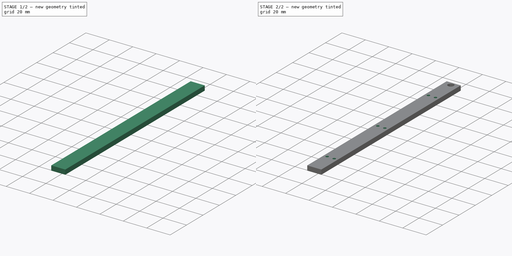
[diagram: build sequence overview — one tinted view per stage of 2, left to right]
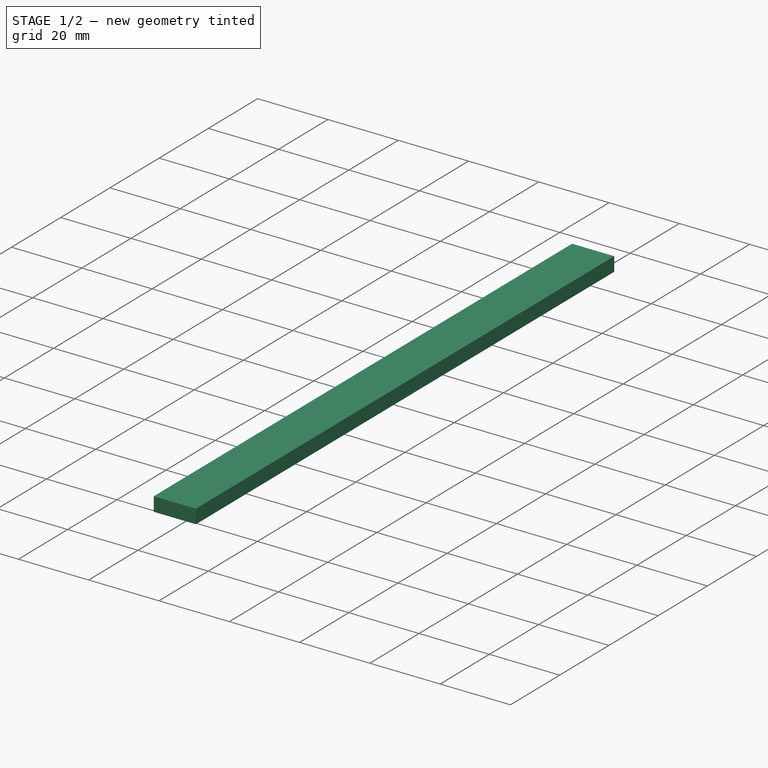
[diagram: stage 1 of 2 — iso view after this stage's code; geometry added in this stage tinted green]
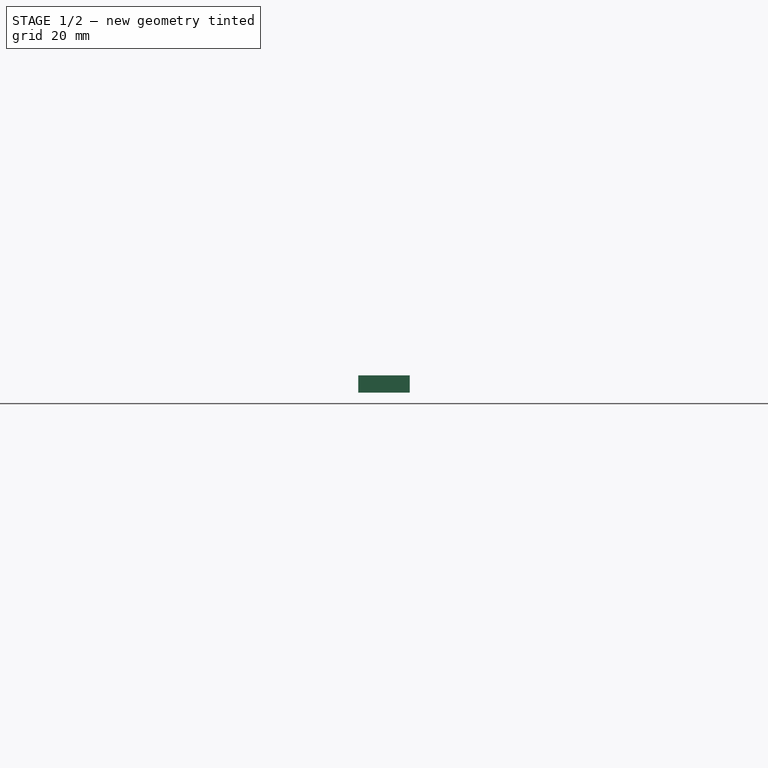
[diagram: stage 1 of 2 — front view after this stage's code; geometry added in this stage tinted green]
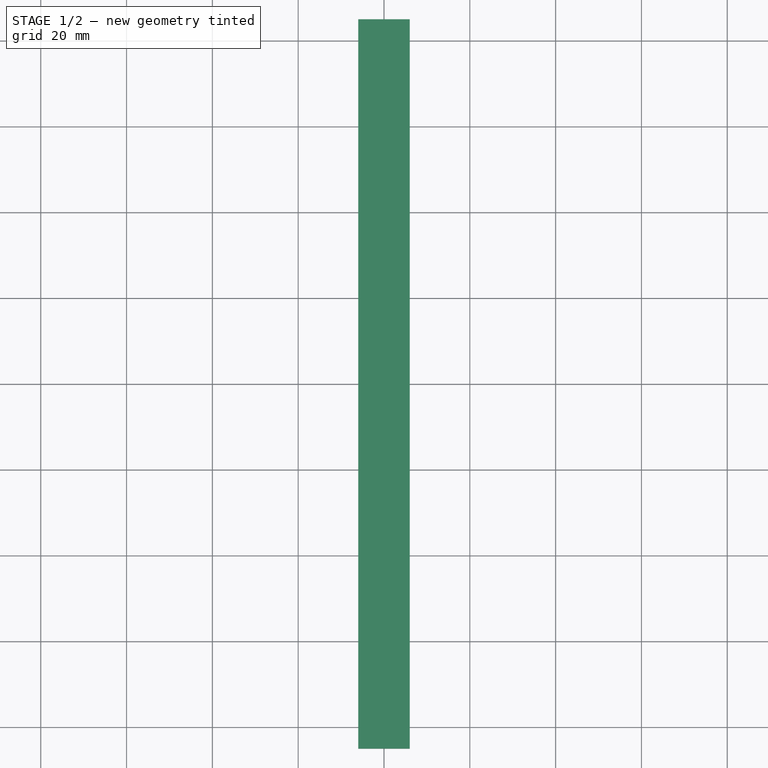
[diagram: stage 1 of 2 — top view after this stage's code; geometry added in this stage tinted green]
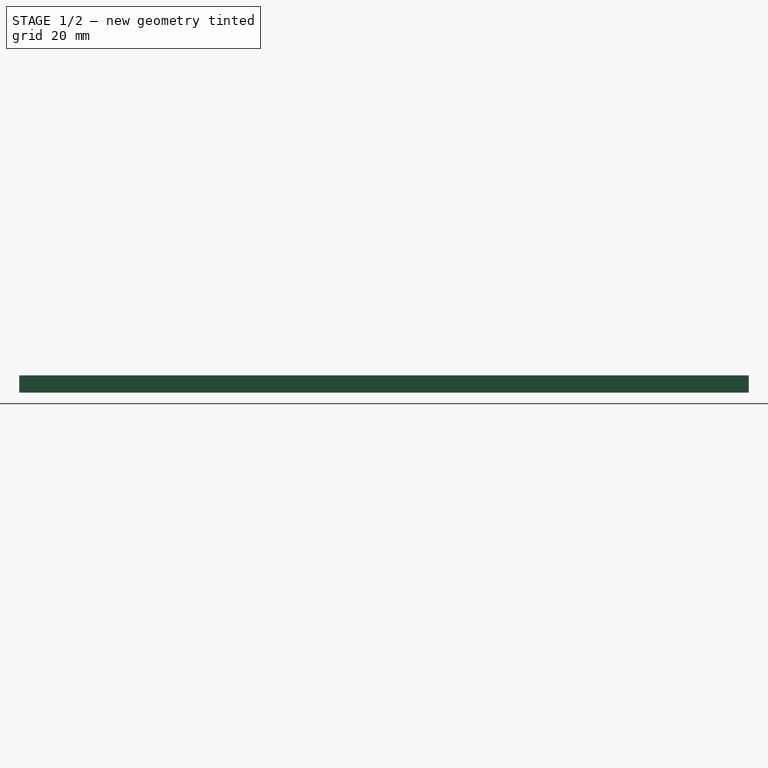
[diagram: stage 1 of 2 — right view after this stage's code; geometry added in this stage tinted green]
FCSTD DOCUMENT  (FreeCAD 1.0R39109 (Git))
Label: top front support
License: All rights reserved
LicenseURL: https://en.wikipedia.org/wiki/All_rights_reserved
objects: Sketcher::SketchObject×4, PartDesign::Pad×2, PartDesign::Pocket×1, PartDesign::Hole×1, PartDesign::Body×1
note: 21 computed .brp shape members not serialized (recipe doc carries the construction recipe); baked Part::Feature solids carry a one-line shape summary decoded from their .brp
EXTERNAL_REF file=case.FCStd obj=Spreadsheet

FEATURE [Sketcher::SketchObject] Sketch
  ArcFitTolerance = 1e-06
  AttachmentSupport = -> [XY_Plane]
  FullyConstrained = true
  MakeInternals = false
  MapMode = 5
  expr: Constraints[19] = case#Spreadsheet.magnet_diameter
  sketch-geometry (9):
    g0: LineSegment StartX=6 StartY=85 StartZ=0 EndX=-6 EndY=85 EndZ=0
    g1: LineSegment StartX=-6 StartY=85 StartZ=0 EndX=-6 EndY=-85 EndZ=0
    g2: LineSegment StartX=-6 StartY=-85 StartZ=0 EndX=6 EndY=-85 EndZ=0
    g3: LineSegment StartX=6 StartY=-85 StartZ=0 EndX=6 EndY=85 EndZ=0
    g4: LineSegment StartX=3.025 StartY=84.5 StartZ=0 EndX=-3.025 EndY=84.5 EndZ=0
    g5: LineSegment StartX=-3.025 StartY=84.5 StartZ=0 EndX=-3.025 EndY=78.45 EndZ=0
    g6: LineSegment StartX=-3.025 StartY=78.45 StartZ=0 EndX=3.025 EndY=78.45 EndZ=0
    g7: LineSegment StartX=3.025 StartY=78.45 StartZ=0 EndX=3.025 EndY=84.5 EndZ=0
    g8: GeomPoint [constr] X=0 Y=84.5 Z=0
  constraints (24):
    c: Coincident(g0,g1)
    c: Coincident(g1,g2)
    c: Coincident(g2,g3)
    c: Coincident(g3,g0)
    c: Horizontal(g0)
    c: Horizontal(g2)
    c: Vertical(g1)
    c: Vertical(g3)
    c: Symmetric(g0,g1,g-1)
    c: DistanceX(g0,g0) = 12
    c: DistanceY(g1,g1) = 170
    c: Coincident(g4,g5)
    c: Coincident(g5,g6)
    c: Coincident(g6,g7)
    c: Coincident(g7,g4)
    c: Horizontal(g4)
    c: Horizontal(g6)
    c: Vertical(g5)
    c: Vertical(g7)
    c: DistanceX(g4,g4) = 6.05
    c: Equal(g4,g7)
    c: Symmetric(g4,g4,g8)
    c: PointOnObject(g8,g-2)
    c: Distance(g4,g0) = 0.5
FEATURE [PartDesign::Pad] Pad  label="base"
  Direction = (0,0,1)
  Length = 4
  Length2 = 10
  Profile = -> Sketch
  ReferenceAxis = -> Sketch [N_Axis]
  Refine = true
  Suppressed = false
  Type = 0
FEATURE [Sketcher::SketchObject] Sketch001
  ArcFitTolerance = 1e-06
  AttachmentSupport = -> [Pad]
  ExternalGeometry = -> [Pad]
  FullyConstrained = true
  MakeInternals = false
  MapMode = 5
  Placement = pos=(0,0,4) rot=(0,0,1;0rad)
  sketch-geometry (4):
    g0: LineSegment StartX=3.025 StartY=84.5 StartZ=0 EndX=-3.025 EndY=84.5 EndZ=0
    g1: LineSegment StartX=-3.025 StartY=84.5 StartZ=0 EndX=-3.025 EndY=78.45 EndZ=0
    g2: LineSegment StartX=-3.025 StartY=78.45 StartZ=0 EndX=3.025 EndY=78.45 EndZ=0
    g3: LineSegment StartX=3.025 StartY=78.45 StartZ=0 EndX=3.025 EndY=84.5 EndZ=0
  constraints (10):
    c: Coincident(g0,g1)
    c: Coincident(g1,g2)
    c: Coincident(g2,g3)
    c: Coincident(g3,g0)
    c: Horizontal(g0)
    c: Horizontal(g2)
    c: Vertical(g1)
    c: Vertical(g3)
    c: Coincident(g0,g-3)
    c: Coincident(g1,g-4)
FEATURE [PartDesign::Pad] Pad001  label="magnet compartment cover"
  BaseFeature = -> Pad
  Direction = (0,0,1)
  Length = 0.5
  Length2 = 10
  Profile = -> Sketch001
  ReferenceAxis = -> Sketch001 [N_Axis]
  Refine = true
  Reversed = true
  Suppressed = false
  Type = 0
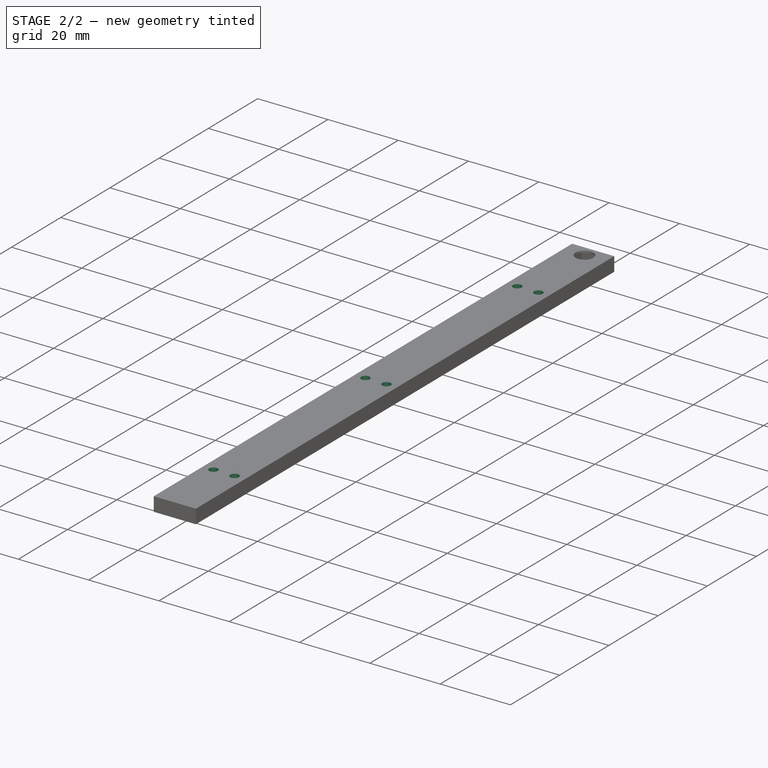
[diagram: stage 2 of 2 — iso view after this stage's code; geometry added in this stage tinted green]
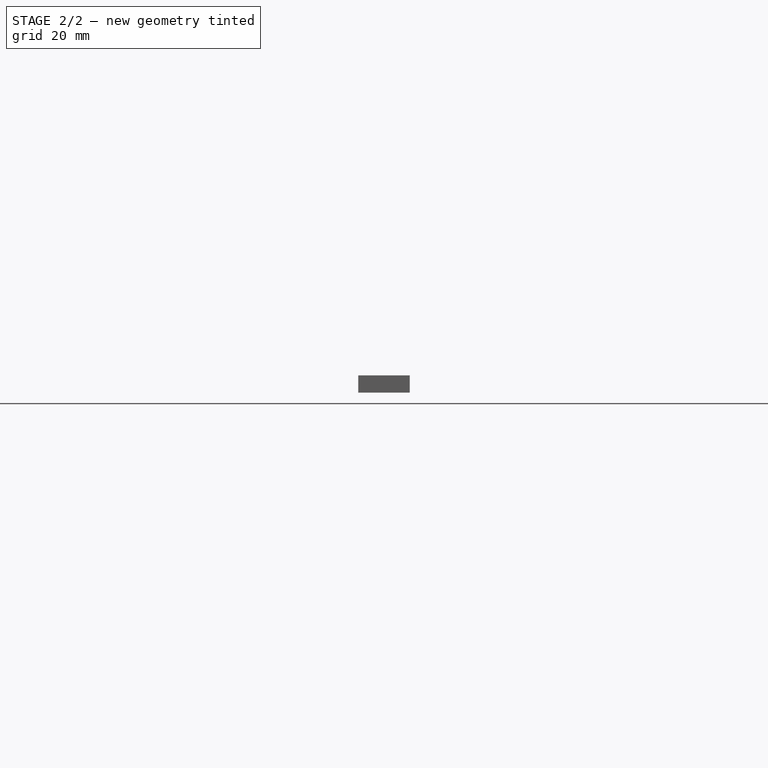
[diagram: stage 2 of 2 — front view after this stage's code; geometry added in this stage tinted green]
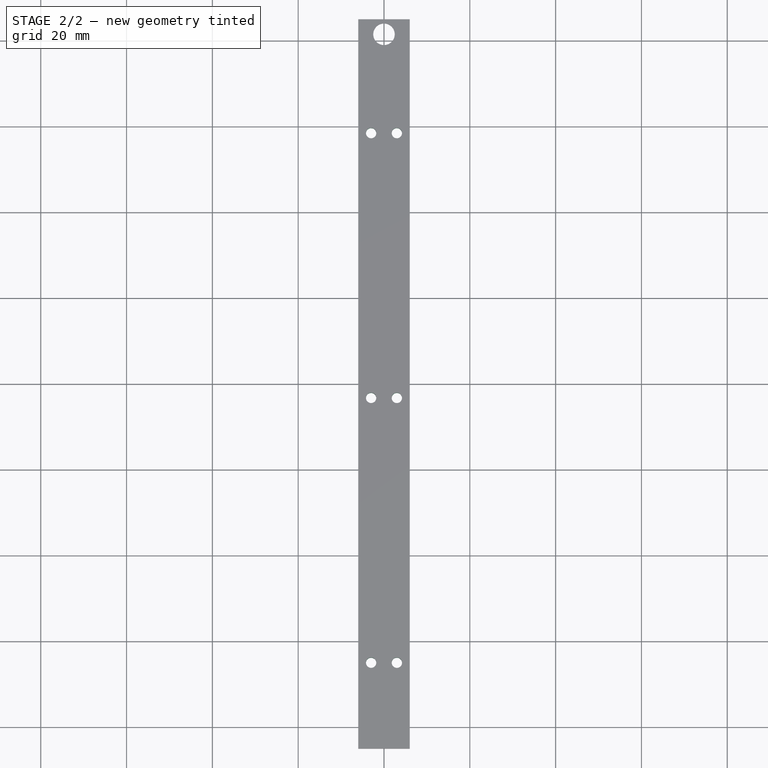
[diagram: stage 2 of 2 — top view after this stage's code; geometry added in this stage tinted green]
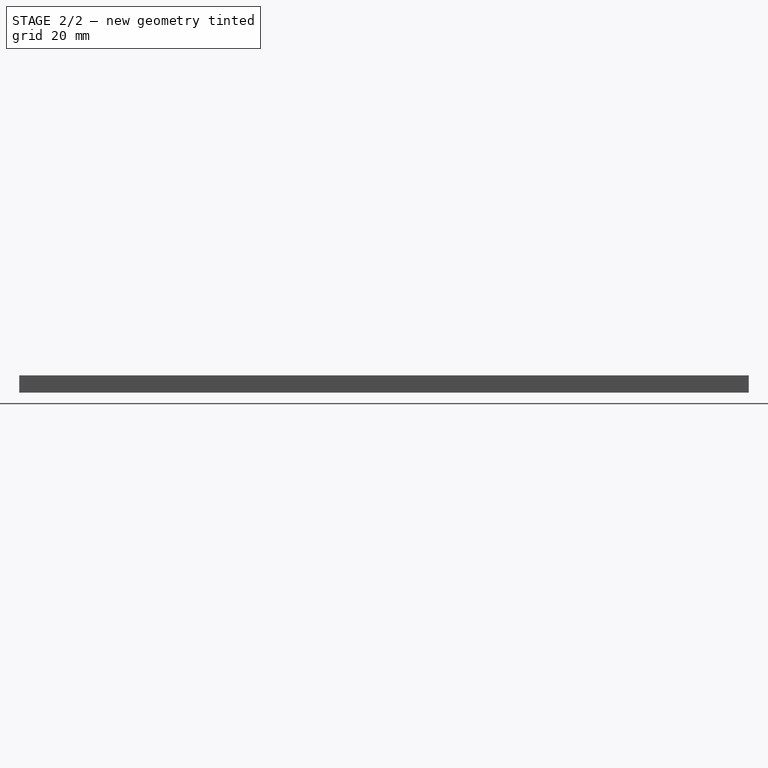
[diagram: stage 2 of 2 — right view after this stage's code; geometry added in this stage tinted green]
FEATURE [Sketcher::SketchObject] Sketch002
  ArcFitTolerance = 1e-06
  AttachmentSupport = -> [Pad001]
  ExternalGeometry = -> [Pad001]
  FullyConstrained = true
  MakeInternals = false
  MapMode = 5
  Placement = pos=(0,0,4) rot=(0,0,1;0rad)
  sketch-geometry (1):
    g0: Circle CenterX=-1e-15 CenterY=81.475 CenterZ=0 NormalX=0 NormalY=0 NormalZ=1 AngleXU=0 Radius=2.5
  constraints (2):
    c: Symmetric(g-3,g-4,g0)
    c: Diameter(g0) = 5
FEATURE [PartDesign::Pocket] Pocket  label="magnet compartment opening"
  BaseFeature = -> Pad001
  Direction = (0,0,-1)
  Length = 0.5
  Length2 = 5
  Profile = -> Sketch002
  ReferenceAxis = -> Sketch002 [N_Axis]
  Refine = true
  Suppressed = false
  Type = 0
FEATURE [Sketcher::SketchObject] Sketch003
  ArcFitTolerance = 1e-06
  AttachmentSupport = -> [Pocket]
  ExternalGeometry = -> [Pocket]
  FullyConstrained = true
  MakeInternals = false
  MapMode = 5
  Placement = pos=(0,0,4) rot=(0,0,1;0rad)
  sketch-geometry (6):
    g0: Circle CenterX=3 CenterY=58.45 CenterZ=0 NormalX=0 NormalY=0 NormalZ=1 AngleXU=0 Radius=1
    g1: Circle CenterX=-3 CenterY=58.45 CenterZ=0 NormalX=0 NormalY=0 NormalZ=1 AngleXU=0 Radius=1
    g2: Circle CenterX=3 CenterY=-3.275 CenterZ=0 NormalX=0 NormalY=0 NormalZ=1 AngleXU=0 Radius=1
    g3: Circle CenterX=-3 CenterY=-3.275 CenterZ=0 NormalX=0 NormalY=0 NormalZ=1 AngleXU=0 Radius=1
    g4: Circle CenterX=3 CenterY=-65 CenterZ=0 NormalX=0 NormalY=0 NormalZ=1 AngleXU=0 Radius=1
    g5: Circle CenterX=-3 CenterY=-65 CenterZ=0 NormalX=0 NormalY=0 NormalZ=1 AngleXU=0 Radius=1
  constraints (17):
    c: Horizontal(g4,g5)
    c: Horizontal(g2,g3)
    c: Horizontal(g0,g1)
    c: Vertical(g0,g2)
    c: Vertical(g3,g5)
    c: Vertical(g5,g1)
    c: Equal(g0,g1)
    c: Equal(g1,g3)
    c: Equal(g3,g2)
    c: Equal(g2,g4)
    c: Equal(g4,g5)
    c: Diameter(g4) = 2
    c: DistanceX(g1,g0) = 6
    c: DistanceX(g0,g-4) = 3
    c: DistanceY(g1,g-5) = 20
    c: DistanceY(g-3,g5) = 20
    c: Symmetric(g0,g4,g2)
FEATURE [PartDesign::Hole] Hole  label="screw holes"
  BaseFeature = -> Pocket
  CustomThreadClearance = 0
  Depth = 25
  DepthType = 0
  Diameter = 2.4
  DrillForDepth = false
  DrillPoint = 1
  DrillPointAngle = 118
  HoleCutCountersinkAngle = 90
  HoleCutCustomValues = false
  HoleCutDepth = 0
  HoleCutDiameter = 6.1
  HoleCutType = 0
  ModelThread = false
  Profile = -> Sketch003
  Refine = true
  Suppressed = false
  Tapered = false
  TaperedAngle = 90
  ThreadClass = 0
  ThreadDepth = 25
  ThreadDepthType = 0
  ThreadDirection = 0
  ThreadFit = 0
  ThreadSize = 6
  ThreadType = 1
  Threaded = false
  UseCustomThreadClearance = false
FEATURE [PartDesign::Body] Body
  AllowCompound = false
  Group = -> [Sketch,Pad,Sketch001,Pad001,Sketch002,Pocket,Sketch003,Hole]
  Origin = -> Origin
  Tip = -> Hole
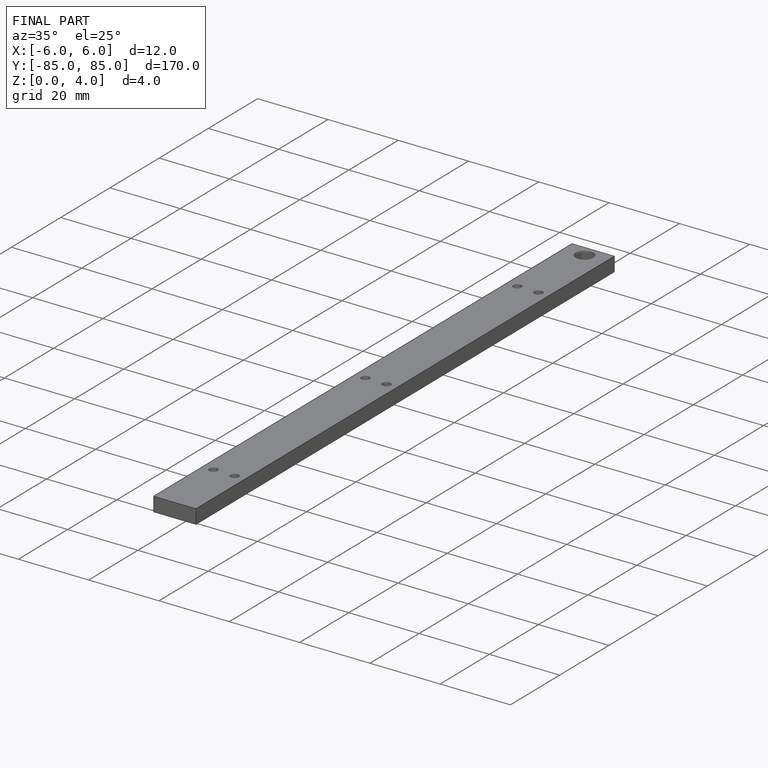
[diagram: finished part — iso view with bounding-box wireframe]
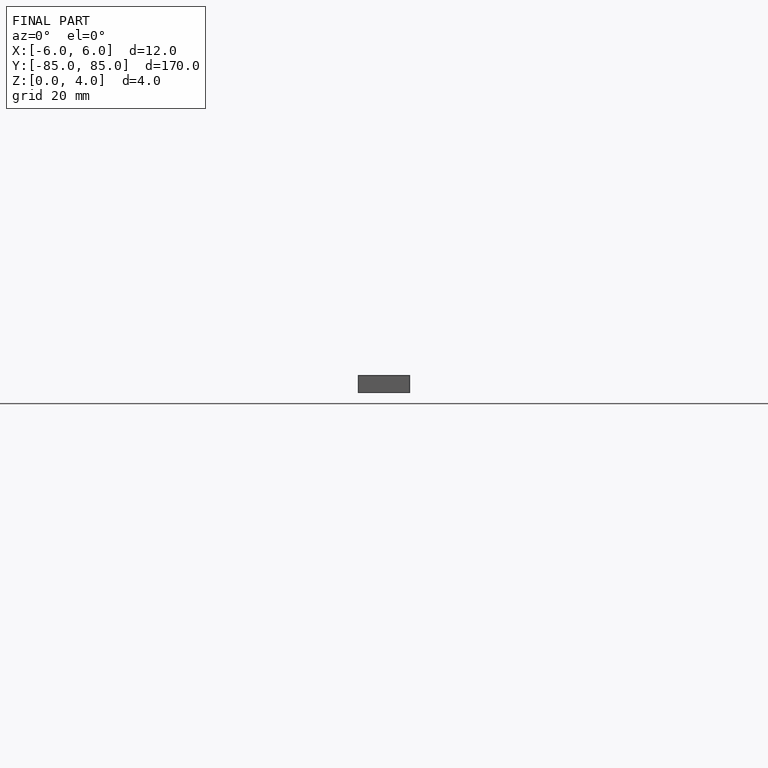
[diagram: finished part — front view with bounding-box wireframe]
